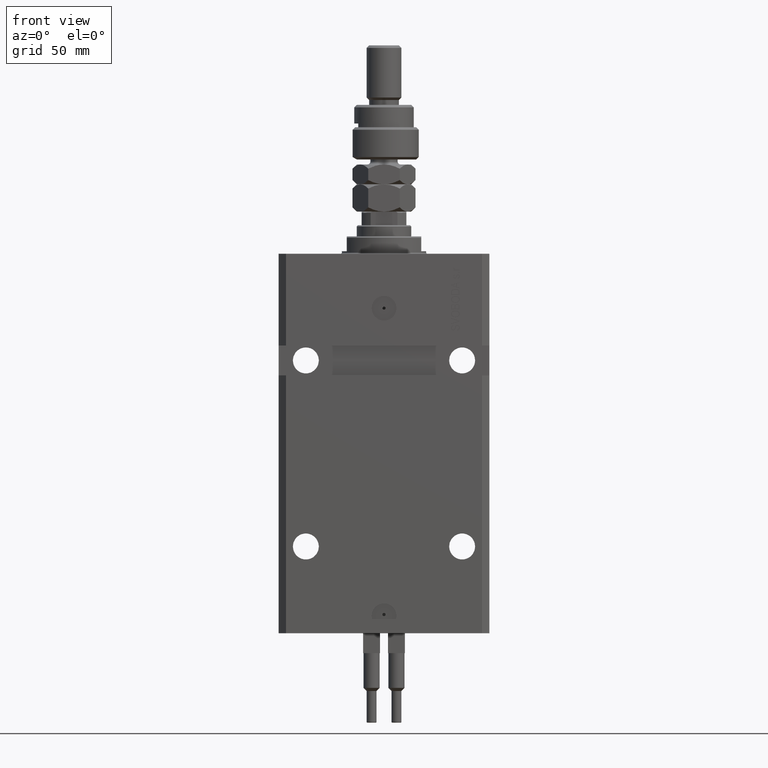
[diagram: clean part render]
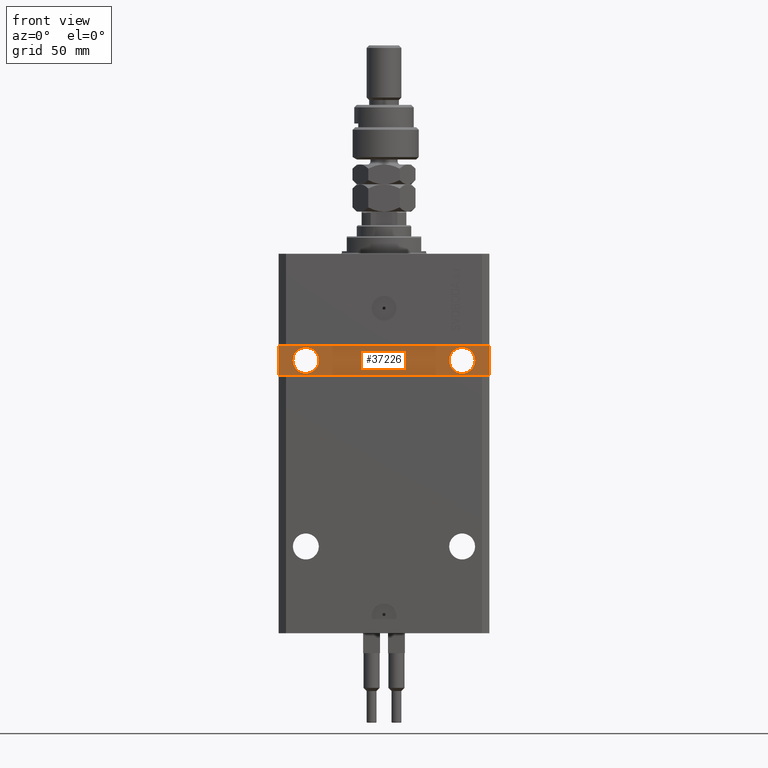
[diagram: same view with one face highlighted and labeled with its STEP entity id]
A machine part, front view. The second image highlights one B-rep face of the part: STEP entity #37226.
In plain terms, the highlighted planar face has unit normal (0, -1, 0).
Its self-contained STEP definition (entity closure, byte-faithful):
#1010 = DIRECTION ( 'NONE',  ( 0.000000000000000000, 0.000000000000000000, 1.000000000000000000 ) ) ;
#1443 = CIRCLE ( 'NONE', #11466, 5.249999999999997335 ) ;
#1580 = CARTESIAN_POINT ( 'NONE',  ( -31.49999999999998579, -28.50000000000000355, -43.00000000000000000 ) ) ;
#1870 = FACE_BOUND ( 'NONE', #21004, .T. ) ;
#2124 = FACE_BOUND ( 'NONE', #39354, .T. ) ;
#2735 = EDGE_CURVE ( 'NONE', #3503, #47018, #10460, .T. ) ;
#2880 = DIRECTION ( 'NONE',  ( -1.000000000000000000, -1.632680918566406054E-16, -8.163404592832030268E-17 ) ) ;
#3400 = DIRECTION ( 'NONE',  ( 1.037025423586453576E-16, -1.000000000000000000, 0.000000000000000000 ) ) ;
#3503 = VERTEX_POINT ( 'NONE', #42429 ) ;
#3625 = CARTESIAN_POINT ( 'NONE',  ( -36.74999999999998579, -28.50000000000000355, -43.00000000000000000 ) ) ;
#8822 = EDGE_LOOP ( 'NONE', ( #19341, #13385, #11199, #34281 ) ) ;
#9179 = EDGE_CURVE ( 'NONE', #19289, #43135, #1443, .T. ) ;
#10225 = CARTESIAN_POINT ( 'NONE',  ( 4.790119779726142858E-15, -28.50000000000000000, 0.000000000000000000 ) ) ;
#10405 = CARTESIAN_POINT ( 'NONE',  ( -31.49999999999998579, -28.50000000000000355, -43.00000000000000000 ) ) ;
#10460 = LINE ( 'NONE', #42381, #40437 ) ;
#11166 = ORIENTED_EDGE ( 'NONE', *, *, #25147, .F. ) ;
#11199 = ORIENTED_EDGE ( 'NONE', *, *, #2735, .T. ) ;
#11466 = AXIS2_PLACEMENT_3D ( 'NONE', #10405, #19043, #35758 ) ;
#11528 = DIRECTION ( 'NONE',  ( 1.037025423586453576E-16, -1.000000000000000000, 0.000000000000000000 ) ) ;
#13109 = AXIS2_PLACEMENT_3D ( 'NONE', #34756, #3400, #15158 ) ;
#13283 = ORIENTED_EDGE ( 'NONE', *, *, #9179, .F. ) ;
#13334 = VERTEX_POINT ( 'NONE', #44261 ) ;
#13385 = ORIENTED_EDGE ( 'NONE', *, *, #21172, .T. ) ;
#15158 = DIRECTION ( 'NONE',  ( 1.000000000000000000, 0.000000000000000000, 0.000000000000000000 ) ) ;
#16610 = CIRCLE ( 'NONE', #36653, 5.249999999999997335 ) ;
#17029 = FACE_OUTER_BOUND ( 'NONE', #8822, .T. ) ;
#17529 = DIRECTION ( 'NONE',  ( 1.101411730780568590E-16, -1.000000000000000000, 0.000000000000000000 ) ) ;
#18147 = DIRECTION ( 'NONE',  ( 0.000000000000000000, 0.000000000000000000, -1.000000000000000000 ) ) ;
#18573 = ORIENTED_EDGE ( 'NONE', *, *, #40849, .F. ) ;
#19007 = ORIENTED_EDGE ( 'NONE', *, *, #46466, .F. ) ;
#19043 = DIRECTION ( 'NONE',  ( 1.101411730780568590E-16, -1.000000000000000000, 0.000000000000000000 ) ) ;
#19289 = VERTEX_POINT ( 'NONE', #3625 ) ;
#19341 = ORIENTED_EDGE ( 'NONE', *, *, #24646, .T. ) ;
#20178 = AXIS2_PLACEMENT_3D ( 'NONE', #47383, #11528, #27471 ) ;
#20235 = LINE ( 'NONE', #43280, #25609 ) ;
#21004 = EDGE_LOOP ( 'NONE', ( #19007, #13283 ) ) ;
#21172 = EDGE_CURVE ( 'NONE', #25275, #3503, #40502, .T. ) ;
#21442 = CARTESIAN_POINT ( 'NONE',  ( -26.24999999999998934, -28.50000000000000355, -43.00000000000000000 ) ) ;
#23587 = CARTESIAN_POINT ( 'NONE',  ( -42.50000000000001421, -28.50000000000000711, -37.00000000000000711 ) ) ;
#24646 = EDGE_CURVE ( 'NONE', #37840, #25275, #20235, .T. ) ;
#24887 = VECTOR ( 'NONE', #18147, 1000.000000000000000 ) ;
#25147 = EDGE_CURVE ( 'NONE', #40300, #13334, #51557, .T. ) ;
#25275 = VERTEX_POINT ( 'NONE', #44443 ) ;
#25609 = VECTOR ( 'NONE', #32240, 1000.000000000000000 ) ;
#25714 = CARTESIAN_POINT ( 'NONE',  ( -42.50000000000001421, -28.50000000000000711, -37.00000000000000711 ) ) ;
#26168 = DIRECTION ( 'NONE',  ( 1.632680918566406054E-16, -1.000000000000000000, 0.000000000000000000 ) ) ;
#27471 = DIRECTION ( 'NONE',  ( 1.000000000000000000, 0.000000000000000000, 0.000000000000000000 ) ) ;
#32240 = DIRECTION ( 'NONE',  ( 1.000000000000000000, 1.632680918566406054E-16, 1.632680918566406054E-16 ) ) ;
#32659 = AXIS2_PLACEMENT_3D ( 'NONE', #10225, #26168, #32972 ) ;
#32972 = DIRECTION ( 'NONE',  ( 1.000000000000000000, 1.632680918566406054E-16, 0.000000000000000000 ) ) ;
#33464 = DIRECTION ( 'NONE',  ( 1.000000000000000000, 0.000000000000000000, 0.000000000000000000 ) ) ;
#34281 = ORIENTED_EDGE ( 'NONE', *, *, #44547, .T. ) ;
#34756 = CARTESIAN_POINT ( 'NONE',  ( 31.50000000000001421, -28.49999999999999645, -43.00000000000000000 ) ) ;
#35758 = DIRECTION ( 'NONE',  ( 1.000000000000000000, 0.000000000000000000, 0.000000000000000000 ) ) ;
#36566 = CARTESIAN_POINT ( 'NONE',  ( 42.50000000000001421, -28.49999999999999289, -48.99999999999997868 ) ) ;
#36653 = AXIS2_PLACEMENT_3D ( 'NONE', #1580, #17529, #33464 ) ;
#37226 = ADVANCED_FACE ( 'NONE', ( #2124, #1870, #17029 ), #45559, .T. ) ;
#37840 = VERTEX_POINT ( 'NONE', #49735 ) ;
#39354 = EDGE_LOOP ( 'NONE', ( #11166, #18573 ) ) ;
#40218 = CIRCLE ( 'NONE', #20178, 5.249999999999997335 ) ;
#40300 = VERTEX_POINT ( 'NONE', #48024 ) ;
#40437 = VECTOR ( 'NONE', #2880, 1000.000000000000000 ) ;
#40502 = LINE ( 'NONE', #36566, #51415 ) ;
#40849 = EDGE_CURVE ( 'NONE', #13334, #40300, #40218, .T. ) ;
#42381 = CARTESIAN_POINT ( 'NONE',  ( 42.50000000000001421, -28.49999999999999289, -37.00000000000000000 ) ) ;
#42429 = CARTESIAN_POINT ( 'NONE',  ( 42.50000000000001421, -28.49999999999999289, -37.00000000000000000 ) ) ;
#43135 = VERTEX_POINT ( 'NONE', #21442 ) ;
#43280 = CARTESIAN_POINT ( 'NONE',  ( -42.50000000000001421, -28.50000000000000711, -48.99999999999999289 ) ) ;
#44261 = CARTESIAN_POINT ( 'NONE',  ( 26.25000000000001776, -28.49999999999999645, -43.00000000000000000 ) ) ;
#44443 = CARTESIAN_POINT ( 'NONE',  ( 42.50000000000001421, -28.49999999999999289, -48.99999999999997868 ) ) ;
#44547 = EDGE_CURVE ( 'NONE', #47018, #37840, #45890, .T. ) ;
#45559 = PLANE ( 'NONE',  #32659 ) ;
#45890 = LINE ( 'NONE', #25714, #24887 ) ;
#46466 = EDGE_CURVE ( 'NONE', #43135, #19289, #16610, .T. ) ;
#47018 = VERTEX_POINT ( 'NONE', #23587 ) ;
#47383 = CARTESIAN_POINT ( 'NONE',  ( 31.50000000000001421, -28.49999999999999645, -43.00000000000000000 ) ) ;
#48024 = CARTESIAN_POINT ( 'NONE',  ( 36.75000000000001421, -28.49999999999999645, -43.00000000000000000 ) ) ;
#49735 = CARTESIAN_POINT ( 'NONE',  ( -42.50000000000001421, -28.50000000000000711, -48.99999999999999289 ) ) ;
#51415 = VECTOR ( 'NONE', #1010, 1000.000000000000000 ) ;
#51557 = CIRCLE ( 'NONE', #13109, 5.249999999999997335 ) ;